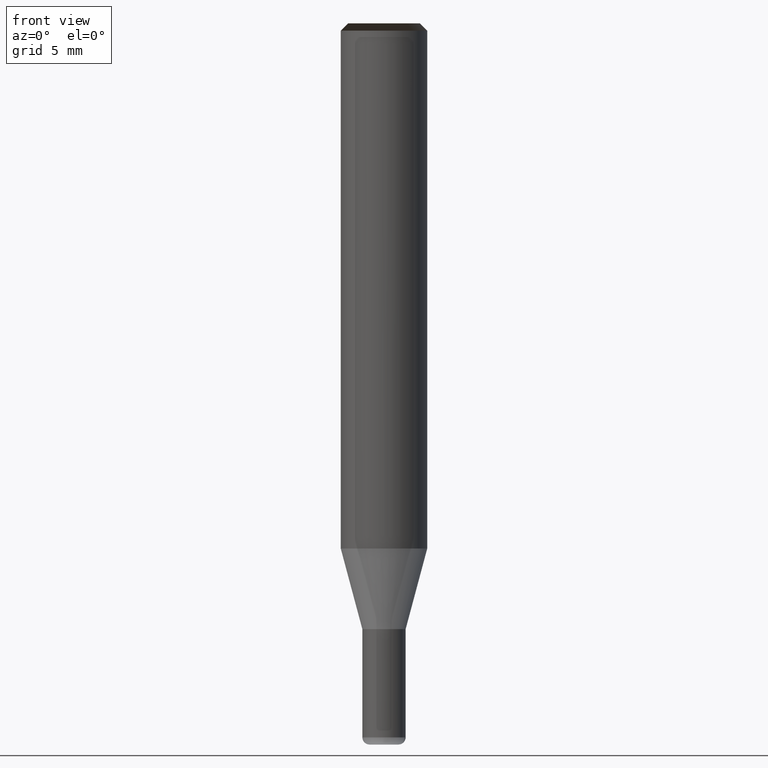
[diagram: clean part render]
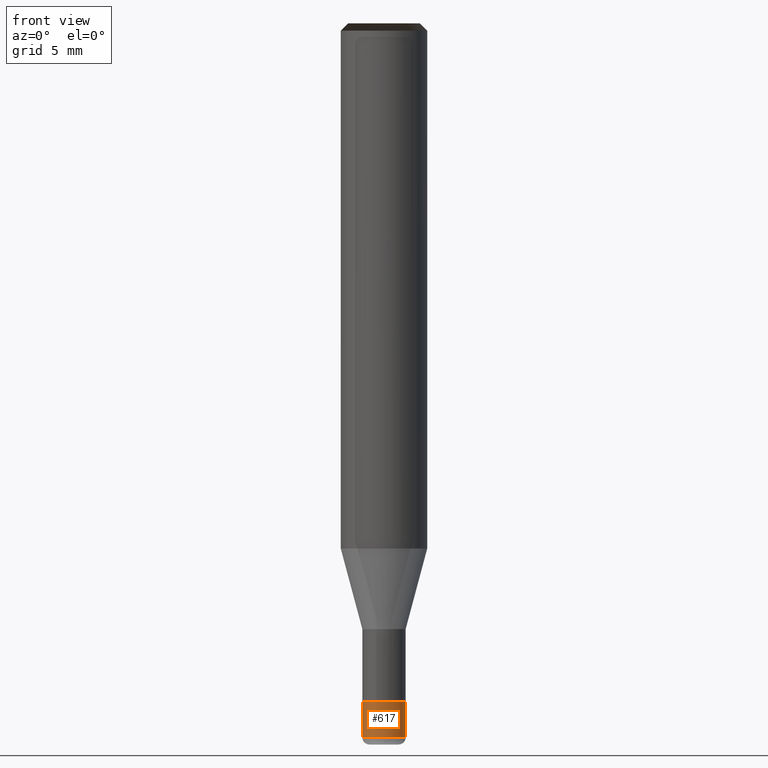
[diagram: same view with one face highlighted and labeled with its STEP entity id]
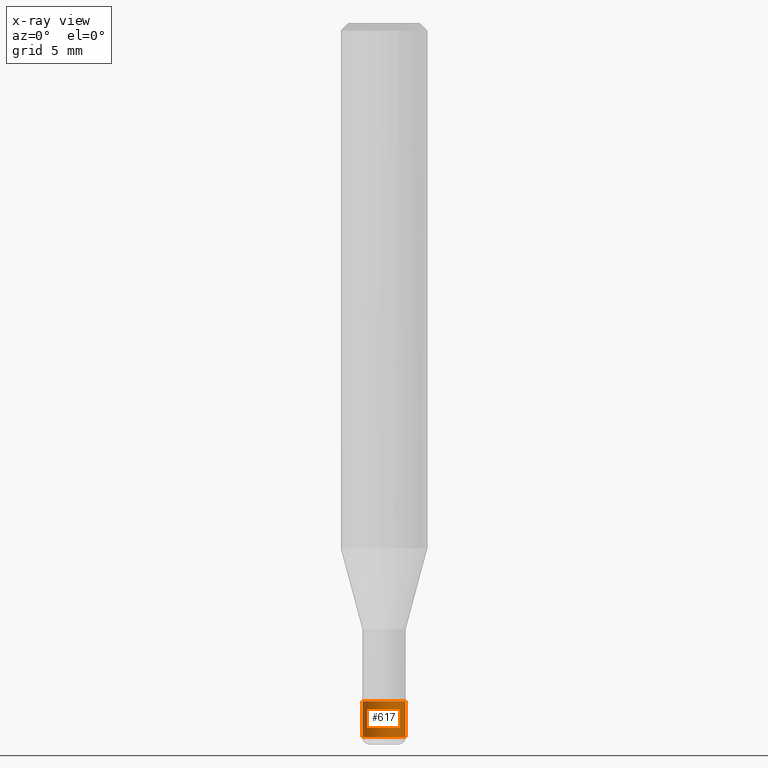
[diagram: x-ray of the same camera — body ghosted, the highlighted face saturated]
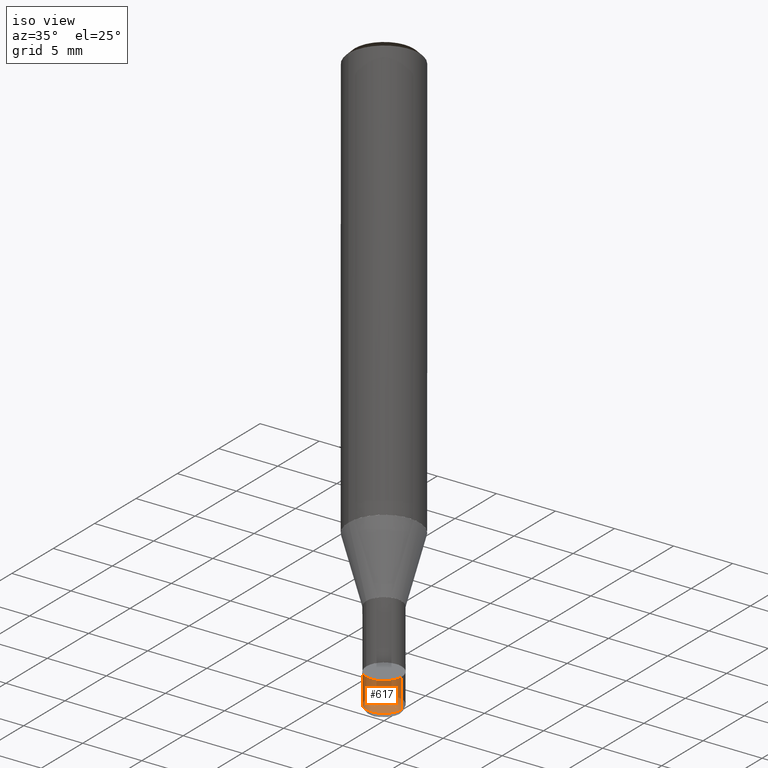
[diagram: same view with one face highlighted and labeled with its STEP entity id]
A machine part, front view. The second image highlights one B-rep face of the part: STEP entity #617.
The next image is the same camera in x-ray: the body ghosted, the highlighted face saturated — about 0% of this face is hidden behind the body in this view.
A second angle (iso view) of the same face is appended — the face is thin or edge-on in the first view.
In plain terms, the highlighted face is a freeform B-spline surface patch.
Its self-contained STEP definition (entity closure, byte-faithful):
#427=CARTESIAN_POINT('',(1.5,0.0,-13.098076211353));
#431=CARTESIAN_POINT('',(-1.5,0.0,-13.098076211353));
#432=CARTESIAN_POINT('',(1.5,0.0,-10.598076211353));
#436=CARTESIAN_POINT('',(-1.5,0.0,-10.598076211353));
#444=CARTESIAN_POINT('',(-1.5,-1.5,-13.098076211353));
#445=CARTESIAN_POINT('',(0.0,-1.5,-13.098076211353));
#446=CARTESIAN_POINT('',(1.5,-1.5,-13.098076211353));
#447=CARTESIAN_POINT('',(-1.5,-1.5,-10.598076211353));
#448=CARTESIAN_POINT('',(0.0,-1.5,-10.598076211353));
#449=CARTESIAN_POINT('',(1.5,-1.5,-10.598076211353));
#598=(
BOUNDED_SURFACE()
B_SPLINE_SURFACE(1,2,(
(#431,#444,#445,#446,#427),
(#436,#447,#448,#449,#432)
), .UNSPECIFIED.,.F.,.F.,.F.)
B_SPLINE_SURFACE_WITH_KNOTS((2,2),(3,2,3),(
0.0,1.0),(
0.0,0.5,1.0), .UNSPECIFIED.)
GEOMETRIC_REPRESENTATION_ITEM()
RATIONAL_B_SPLINE_SURFACE(((1.0,0.707106781187,1.0,0.707106781187,1.0),
(1.0,0.707106781187,1.0,0.707106781187,1.0)
))
REPRESENTATION_ITEM('')
SURFACE()
);
#599=(
BOUNDED_CURVE()
B_SPLINE_CURVE(1,(#436,#431),.UNSPECIFIED.,.F.,.F.)
B_SPLINE_CURVE_WITH_KNOTS((2,2),
(0.0,1.0),.UNSPECIFIED.)
CURVE()
GEOMETRIC_REPRESENTATION_ITEM()
RATIONAL_B_SPLINE_CURVE((1.0,1.0))
REPRESENTATION_ITEM('')
);
#600=(
BOUNDED_CURVE()
B_SPLINE_CURVE(2,(#431,#444,#445,#446,#427),.UNSPECIFIED.,.F.,.F.)
B_SPLINE_CURVE_WITH_KNOTS((3,2,3),
(0.0,0.5,1.0),.UNSPECIFIED.)
CURVE()
GEOMETRIC_REPRESENTATION_ITEM()
RATIONAL_B_SPLINE_CURVE((1.0,0.707106781187,1.0,0.707106781187,1.0))
REPRESENTATION_ITEM('')
);
#601=(
BOUNDED_CURVE()
B_SPLINE_CURVE(1,(#427,#432),.UNSPECIFIED.,.F.,.F.)
B_SPLINE_CURVE_WITH_KNOTS((2,2),
(0.0,1.0),.UNSPECIFIED.)
CURVE()
GEOMETRIC_REPRESENTATION_ITEM()
RATIONAL_B_SPLINE_CURVE((1.0,1.0))
REPRESENTATION_ITEM('')
);
#602=(
BOUNDED_CURVE()
B_SPLINE_CURVE(2,(#432,#449,#448,#447,#436),.UNSPECIFIED.,.F.,.F.)
B_SPLINE_CURVE_WITH_KNOTS((3,2,3),
(0.0,0.5,1.0),.UNSPECIFIED.)
CURVE()
GEOMETRIC_REPRESENTATION_ITEM()
RATIONAL_B_SPLINE_CURVE((1.0,0.707106781187,1.0,0.707106781187,1.0))
REPRESENTATION_ITEM('')
);
#603=VERTEX_POINT('',#427);
#604=VERTEX_POINT('',#431);
#605=VERTEX_POINT('',#432);
#606=VERTEX_POINT('',#436);
#607=EDGE_CURVE('',#606,#604,#599,.T.);
#608=EDGE_CURVE('',#604,#603,#600,.T.);
#609=EDGE_CURVE('',#603,#605,#601,.T.);
#610=EDGE_CURVE('',#605,#606,#602,.T.);
#611=ORIENTED_EDGE('',*,*,#607,.T.);
#612=ORIENTED_EDGE('',*,*,#608,.T.);
#613=ORIENTED_EDGE('',*,*,#609,.T.);
#614=ORIENTED_EDGE('',*,*,#610,.T.);
#615=EDGE_LOOP('',(#611,#612,#613,#614));
#616=FACE_OUTER_BOUND('',#615,.T.);
#617=ADVANCED_FACE('',(#616),#598,.T.);